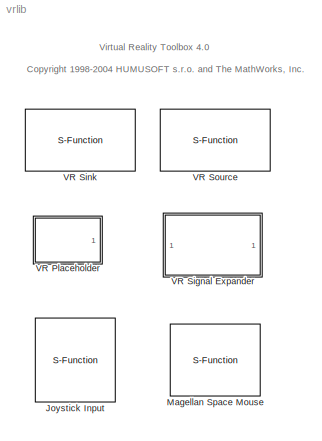
MODEL vrlib
KIND library
BLOCK [S-Function] Joystick Input
  FunctionName = joyinput
  MaskCallbackString = ||
  MaskDescription = Joystick input device driver.
  MaskDisplay = image(imread('joystickicon.png'));\nport_label('output', 1, 'Axes');\nport_label('output', 2, 'Buttons');\nport_label('output', 3, 'Point of View');\n\n
  MaskEnableString = on,on,on
  MaskHelp = helpview(fullfile(docroot, 'toolbox', 'vr', 'vr.map'), 'vr_joystickinput');\n
  MaskIconFrame = on
  MaskIconOpaque = off
  MaskIconRotate = none
  MaskIconUnits = autoscale
  MaskPromptString = Joystick ID:|Adjust I/O ports according to joystick capabilities|Enable force-feedback input
  MaskSelfModifiable = on
  MaskStyleString = edit,checkbox,checkbox
  MaskTabNameString = ,,
  MaskToolTipString = on,on,on
  MaskTunableValueString = off,off,off
  MaskType = Joystick Input
  MaskValueString = 1|on|off
  MaskVarAliasString = ,,
  MaskVariables = joyid=@1;adjustports=@2;forcefeed=@3;
  MaskVisibilityString = on,on,on
  Parameters = joyid, adjustports, forcefeed
  Ports = [0, 3]
BLOCK [S-Function] Magellan Space Mouse
  FunctionName = spacemouse
  MaskCallbackString = |spacemousemask||||||||
  MaskDescription = Magellan Space Mouse input device driver.
  MaskDisplay = image(imread('spacemouseicon.png'))\nport_label('output', 1, 'Translation')\nport_label('output', 2, 'Rotation')\nport_label('output', 3, 'Buttons')\n
  MaskEnableString = on,on,on,on,on,off,on,on,off,off
  MaskHelp = helpview(fullfile(docroot, 'toolbox', 'vr', 'vr.map'), 'vr_magellanspacemouse');\n
  MaskIconFrame = on
  MaskIconOpaque = off
  MaskIconRotate = none
  MaskIconUnits = pixels
  MaskPromptString = Port:|Output type:|Dominant mode|Disable position movement|Disable rotation movement|Normalize output angle|Position sensitivity:|Rotation sensitivity:|Initial position:|Initial rotation:
  MaskStyleString = popup(COM1|COM2|COM3|COM4|USB),popup(Speed|Position|Viewpoint coordinates),checkbox,checkbox,checkbox,checkbox,edit,edit,edit,edit
  MaskTabNameString = ,,,,,,,,,
  MaskToolTipString = on,on,on,on,on,on,on,on,on,on
  MaskTunableValueString = off,off,on,on,on,on,on,on,off,off
  MaskType = Magellan Space Mouse
  MaskValueString = COM1|Speed|off|off|off|off|0.0001|0.00001|[0 0 0]|[0 0 1 0]
  MaskVarAliasString = ,,,,,,,,,
  MaskVariables = Port=@1;OutputType=@2;Dominant=@3;DisableTranslation=@4;DisableRotation=@5;NormalizeAngle=@6;PositionSensitivity=@7;RotationSensitivity=@8;InitialPosition=@9;InitialRotation=@10;
  MaskVisibilityString = on,on,on,on,on,on,on,on,on,on
  Parameters = Port, OutputType, InitialPosition, InitialRotation, PositionSensitivity, RotationSensitivity, Dominant, NormalizeAngle, DisableTranslation, DisableRotation
  Ports = [0, 3]
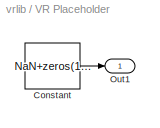
BLOCK [SubSystem] VR Placeholder
  EnableExecutionContextPropagation = on
  MaskDescription = Generate a vector of VR Placeholder signals used for masking the unused or unaffected components of VRML fields.
  MaskDisplay = text(0.1,0.5,'VR');\nplot([0.4 0.4], [0.3 0.7]);\nplot([0.4 0.9], [0.45 0.44]);\nplot([0.4 0.9], [0.5 0.5]);\nplot([0.4 0.9], [0.55 0.55]);\n
  MaskEnableString = on
  MaskHelp = helpview(fullfile(docroot, 'toolbox', 'vr', 'vr.map'), 'vr_vrplaceholder');\n
  MaskIconFrame = on
  MaskIconOpaque = on
  MaskIconRotate = port
  MaskIconUnits = normalized
  MaskPromptString = Output width
  MaskStyleString = edit
  MaskToolTipString = on
  MaskTunableValueString = off
  MaskType = VR Placeholder
  MaskValueString = 1
  MaskVariables = outwidth=@1;
  MaskVisibilityString = on
  MinAlgLoopOccurrences = off
  Ports = [0, 1]
  TreatAsAtomicUnit = off
BLOCK [Constant] VR Placeholder/Constant
  Value = NaN+zeros(1,outwidth)
BLOCK [Outport] VR Placeholder/Out1
  IconDisplay = Port number
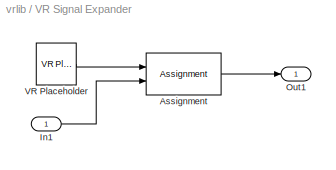
BLOCK [SubSystem] VR Signal Expander
  EnableExecutionContextPropagation = on
  MaskCallbackString = |
  MaskDescription = Expand input vector into a fully qualified VRML field signal, filling the blank positions in the output port with the VR Placeholder signal.  \n\nInput: The vector of inputs to be mapped into the output port.\nOutput width: The width of the output port.\nOutput signal indices: Positions of output vector at which the input signal elements appear. The remaining positions are filled with the VR Place...<+14ch>
  MaskDisplay = text(0.13,0.2,'VR');\nplot([0.1 0.9],[0.6 0.9]);\nplot([0.1 0.9],[0.55 0.8]);\nplot([0.1 0.9],[0.5 0.5]);\nplot([0.1 0.9],[0.45 0.2]);\nplot([0.1 0.9],[0.4 0.1]);
  MaskEnableString = on,on
  MaskHelp = helpview(fullfile(docroot, 'toolbox', 'vr', 'vr.map'), 'vr_vrsignalexpander');\n
  MaskIconFrame = on
  MaskIconOpaque = on
  MaskIconRotate = port
  MaskIconUnits = normalized
  MaskInitialization = sel=ones(1,outwidth);\nsel(outidx)=2:(length(outidx)+1);\n
  MaskPromptString = Output width|Output signal indices
  MaskStyleString = edit,edit
  MaskTabNameString = ,
  MaskToolTipString = on,on
  MaskTunableValueString = off,off
  MaskType = VR Signal Expander
  MaskValueString = 4|[2 4]
  MaskVarAliasString = ,
  MaskVariables = outwidth=@1;outidx=@2;
  MaskVisibilityString = on,on
  MinAlgLoopOccurrences = off
  Ports = [1, 1]
  TreatAsAtomicUnit = off
BLOCK [Assignment] VR Signal Expander/Assignment
  Elements = outidx
  Ports = [2, 1]
BLOCK [Inport] VR Signal Expander/In1
  IconDisplay = Port number
  LatchInput = off
BLOCK [Outport] VR Signal Expander/Out1
  IconDisplay = Port number
BLOCK [Reference] VR Signal Expander/VR Placeholder  REF=vrlib/VR Placeholder
  Ports = [0, 1]
  SourceBlock = vrlib/VR Placeholder
  SourceType = VR Placeholder
  outwidth = outwidth
BLOCK [S-Function] VR Sink
  CloseFcn = vrmfunc('FnClose', gcbh);
  CopyFcn = vrmfunc('FnCopy', gcbh);
  DeleteFcn = vrmfunc('FnDelete', gcbh);
  DestroyFcn = vrmfunc('FnDestroy', gcbh);
  FunctionName = vrsfunc
  InitFcn = vrmfunc('FnInit', gcbh);
  LoadFcn = vrmfunc('FnLoad', gcbh);
  MaskCallbackString = ||||||||
  MaskDescription = Controls the selected fields of a virtual world according to given inputs.\n
  MaskDisplay = image(imread('vrblockicon.png'))
  MaskEnableString = on,on,on,on,on,on,on,on,on
  MaskHelp = helpview(fullfile(docroot, 'toolbox', 'vr', 'vr.map'), 'vr_vrsink');\n
  MaskIconFrame = on
  MaskIconOpaque = on
  MaskIconRotate = none
  MaskIconUnits = autoscale
  MaskInitialization = set_param(gcbh, 'MaskDisplay', vrmfunc('FnIcon'));\n
  MaskPromptString = Sample Time|View|Remote Change|Remote View|Fields Written|World File Name|World Description|AutoView|Figure Properties
  MaskSelfModifiable = on
  MaskStyleString = edit,checkbox,checkbox,checkbox,edit,edit,edit,checkbox,edit
  MaskTabNameString = ,,,,,,,,
  MaskToolTipString = on,on,on,on,on,on,on,on,on
  MaskTunableValueString = off,off,off,off,off,off,on,off,off
  MaskType = Virtual Reality Sink
  MaskValueString = 0.1|on|off|on||||off|{}
  MaskVarAliasString = ,,,,,,,,
  MaskVariables = SampleTime=@1;ViewEnable=@2;RemoteChange=@3;RemoteView=@4;FieldsWritten=&5;WorldFileName=&6;WorldDescription=&7;AutoView=@8;FigureProperties=@9;
  MaskVisibilityString = on,on,off,on,on,on,on,on,off
  OpenFcn = vrmfunc('FnOpen', gcbh);
  Parameters = WorldFileName, {}, FieldsWritten, AutoView, RemoteView, RemoteChange, SampleTime, WorldDescription
  Ports = [1]
  PreSaveFcn = vrmfunc('FnPreSave', gcbh);
BLOCK [S-Function] VR Source
  CloseFcn = vrmfunc('FnClose', gcbh);
  CopyFcn = vrmfunc('FnCopy', gcbh);
  DeleteFcn = vrmfunc('FnDelete', gcbh);
  DestroyFcn = vrmfunc('FnDestroy', gcbh);
  FunctionName = vrsfunc
  InitFcn = vrmfunc('FnInit', gcbh);
  LoadFcn = vrmfunc('FnLoad', gcbh);
  MaskCallbackString = ||||||||
  MaskDescription = Reads the selected fields of a virtual world.\n
  MaskDisplay = image(imread('vrblockicon.png'))
  MaskEnableString = on,on,on,on,on,on,on,on,on
  MaskHelp = helpview(fullfile(docroot, 'toolbox', 'vr', 'vr.map'), 'vr_vrsource');\n
  MaskIconFrame = on
  MaskIconOpaque = on
  MaskIconRotate = none
  MaskIconUnits = autoscale
  MaskInitialization = set_param(gcbh, 'MaskDisplay', vrmfunc('FnIcon'));\n
  MaskPromptString = Sample Time|View|Remote Change|Remote View|Fields Written|World File Name|World Description|AutoView|Figure Properties
  MaskSelfModifiable = on
  MaskStyleString = edit,checkbox,checkbox,checkbox,edit,edit,edit,checkbox,edit
  MaskTabNameString = ,,,,,,,,
  MaskToolTipString = on,on,on,on,on,on,on,on,on
  MaskTunableValueString = off,off,off,off,off,off,on,off,off
  MaskType = Virtual Reality Source
  MaskValueString = 0.1|on|off|on||||off|{}
  MaskVarAliasString = ,,,,,,,,
  MaskVariables = SampleTime=@1;ViewEnable=@2;RemoteChange=@3;RemoteView=@4;FieldsRead=&5;WorldFileName=&6;WorldDescription=&7;AutoView=@8;FigureProperties=@9;
  MaskVisibilityString = on,on,off,on,on,on,on,on,off
  OpenFcn = vrmfunc('FnOpen', gcbh);
  Parameters = WorldFileName, FieldsRead, {}, AutoView, RemoteView, RemoteChange, SampleTime, WorldDescription
  Ports = [0, 1]
  PreSaveFcn = vrmfunc('FnPreSave', gcbh);
ANNOTATION (root): <copyright redacted>
ANNOTATION (root): Virtual Reality Toolbox 4.0
LINE VR Placeholder/Constant:1 -> VR Placeholder/Out1:1
LINE VR Signal Expander/Assignment:1 -> VR Signal Expander/Out1:1
LINE VR Signal Expander/In1:1 -> VR Signal Expander/Assignment:2
LINE VR Signal Expander/VR Placeholder:1 -> VR Signal Expander/Assignment:1
